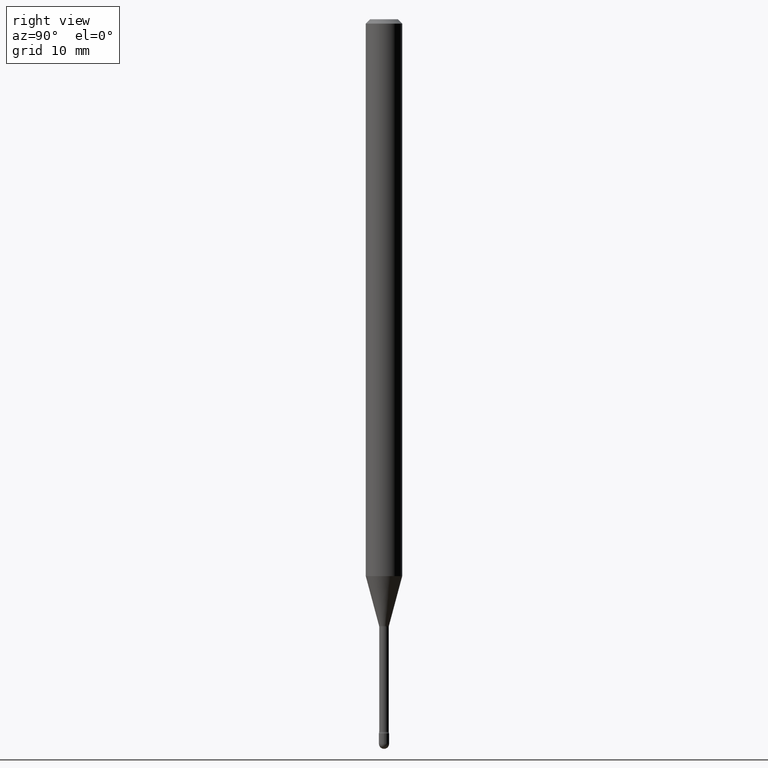
[diagram: clean part render]
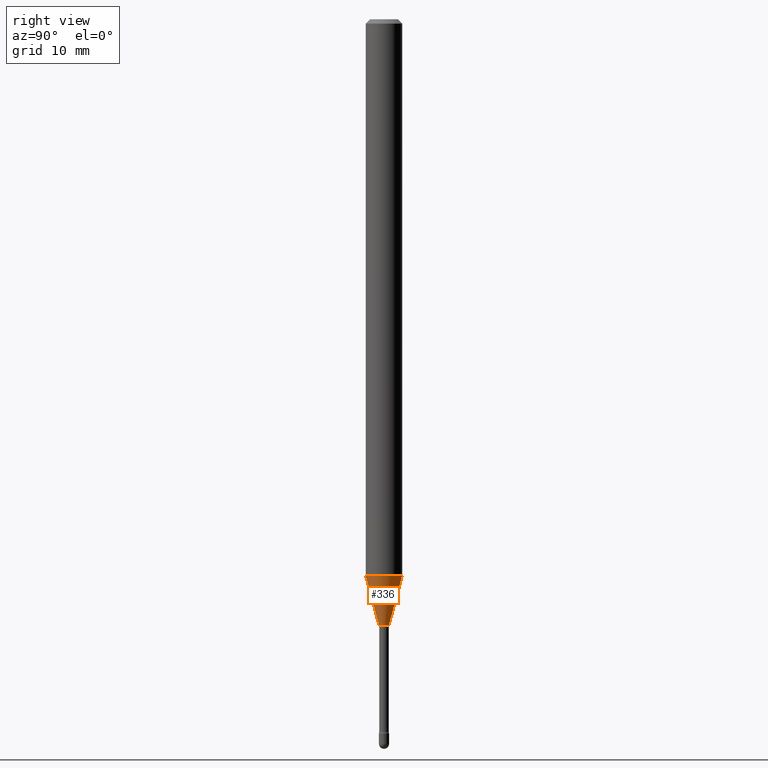
[diagram: same view with one face highlighted and labeled with its STEP entity id]
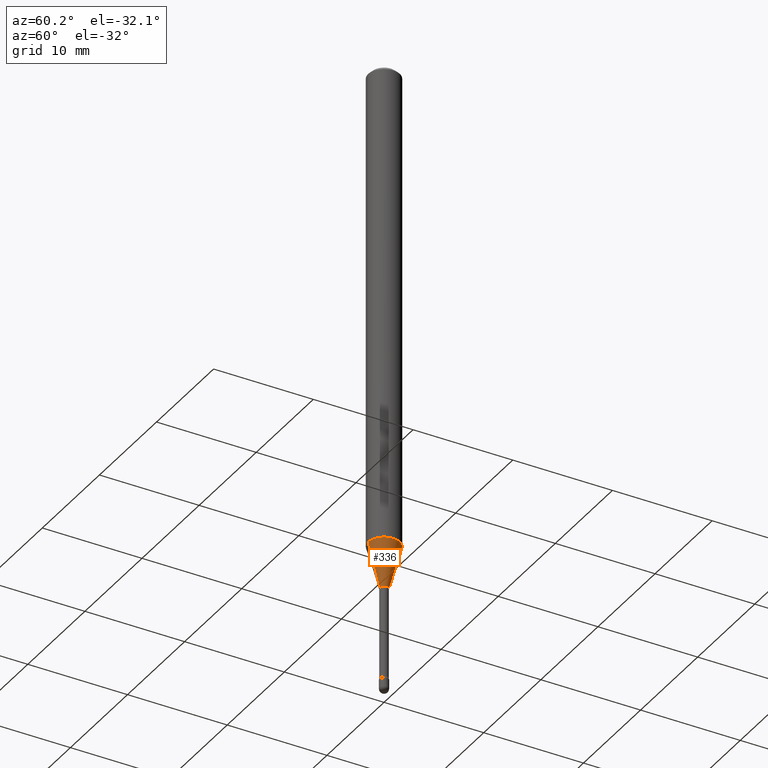
[diagram: same view with one face highlighted and labeled with its STEP entity id]
A machine part, right view. The second image highlights one B-rep face of the part: STEP entity #336.
A second angle (auxiliary view) of the same face is appended — the face is thin or edge-on in the first view.
In plain terms, the highlighted conical surface has half-angle 15 deg.
Its self-contained STEP definition (entity closure, byte-faithful):
#20 = ORIENTED_EDGE ( 'NONE', *, *, #234, .T. ) ;
#63 = VERTEX_POINT ( 'NONE', #308 ) ;
#88 = ORIENTED_EDGE ( 'NONE', *, *, #406, .F. ) ;
#110 = DIRECTION ( 'NONE',  ( -6.982962677686265922E-15, -1.000000000000000000, 4.370956789862821150E-15 ) ) ;
#120 = FACE_OUTER_BOUND ( 'NONE', #251, .T. ) ;
#123 = AXIS2_PLACEMENT_3D ( 'NONE', #373, #148, #110 ) ;
#131 = EDGE_CURVE ( 'NONE', #468, #549, #239, .T. ) ;
#148 = DIRECTION ( 'NONE',  ( -2.445474670097060204E-29, 3.491472941387517759E-15, 1.000000000000000000 ) ) ;
#149 = DIRECTION ( 'NONE',  ( 1.839019923739598738E-15, 0.2588190451025247363, 0.9659258262890673130 ) ) ;
#173 = CARTESIAN_POINT ( 'NONE',  ( -1.184388162973348087E-16, -0.01696111260567123580, -2.078092501787273338 ) ) ;
#176 = VECTOR ( 'NONE', #432, 39.37007874015748854 ) ;
#182 = AXIS2_PLACEMENT_3D ( 'NONE', #297, #254, #438 ) ;
#183 = CIRCLE ( 'NONE', #123, 0.06250000000000000000 ) ;
#195 = CARTESIAN_POINT ( 'NONE',  ( 2.823025816868981885E-16, 0.01696111260565672657, -2.078092501787273338 ) ) ;
#225 = AXIS2_PLACEMENT_3D ( 'NONE', #244, #386, #525 ) ;
#232 = CARTESIAN_POINT ( 'NONE',  ( -1.184388162973348087E-16, -0.01696111260567123580, -2.078092501787273338 ) ) ;
#234 = EDGE_CURVE ( 'NONE', #549, #63, #367, .T. ) ;
#239 = CIRCLE ( 'NONE', #182, 0.01696111260566398118 ) ;
#244 = CARTESIAN_POINT ( 'NONE',  ( 5.081922575239406548E-29, -7.255603739690556610E-15, -2.078092501787273338 ) ) ;
#246 = VERTEX_POINT ( 'NONE', #561 ) ;
#248 = LINE ( 'NONE', #173, #176 ) ;
#251 = EDGE_LOOP ( 'NONE', ( #383, #20, #315, #88 ) ) ;
#254 = DIRECTION ( 'NONE',  ( -2.445474670097060204E-29, 3.491472941387517759E-15, 1.000000000000000000 ) ) ;
#258 = VECTOR ( 'NONE', #149, 39.37007874015748854 ) ;
#297 = CARTESIAN_POINT ( 'NONE',  ( 5.081922575239406548E-29, -7.255603739690556610E-15, -2.078092501787273338 ) ) ;
#308 = CARTESIAN_POINT ( 'NONE',  ( 4.440892098501091590E-16, 0.06249999999999333172, -1.908139060311454083 ) ) ;
#315 = ORIENTED_EDGE ( 'NONE', *, *, #436, .F. ) ;
#336 = ADVANCED_FACE ( 'NONE', ( #120 ), #485, .T. ) ;
#367 = LINE ( 'NONE', #544, #258 ) ;
#373 = CARTESIAN_POINT ( 'NONE',  ( 4.666305739014466842E-29, -6.662215897482046278E-15, -1.908139060311453861 ) ) ;
#383 = ORIENTED_EDGE ( 'NONE', *, *, #131, .T. ) ;
#386 = DIRECTION ( 'NONE',  ( -2.445474670097060204E-29, 3.491472941387517759E-15, 1.000000000000000000 ) ) ;
#406 = EDGE_CURVE ( 'NONE', #468, #246, #248, .T. ) ;
#432 = DIRECTION ( 'NONE',  ( -1.807323732225328562E-15, -0.2588190451025179639, 0.9659258262890690894 ) ) ;
#436 = EDGE_CURVE ( 'NONE', #246, #63, #183, .T. ) ;
#438 = DIRECTION ( 'NONE',  ( -6.982962677686266711E-15, -1.000000000000000000, 0.000000000000000000 ) ) ;
#468 = VERTEX_POINT ( 'NONE', #232 ) ;
#485 = CONICAL_SURFACE ( 'NONE', #225, 0.01696111260566398118, 0.2617993877991500740 ) ;
#525 = DIRECTION ( 'NONE',  ( -6.982962677686266711E-15, -1.000000000000000000, 0.000000000000000000 ) ) ;
#544 = CARTESIAN_POINT ( 'NONE',  ( 1.205159535236868728E-16, 0.01696111260565672310, -2.078092501787273338 ) ) ;
#549 = VERTEX_POINT ( 'NONE', #195 ) ;
#561 = CARTESIAN_POINT ( 'NONE',  ( -4.364351673553452252E-16, -0.06250000000000668909, -1.908139060311453417 ) ) ;